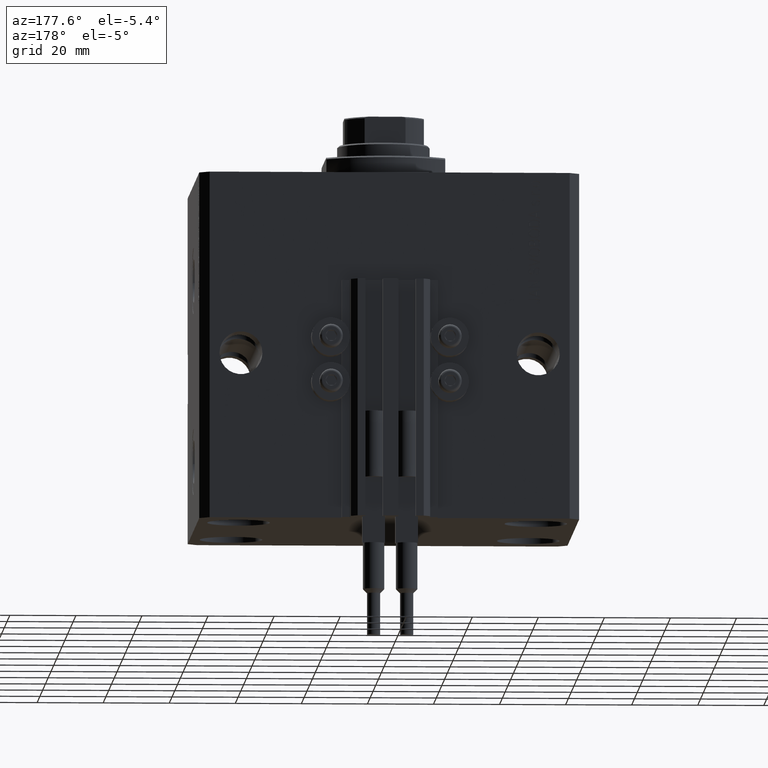
[diagram: clean part render]
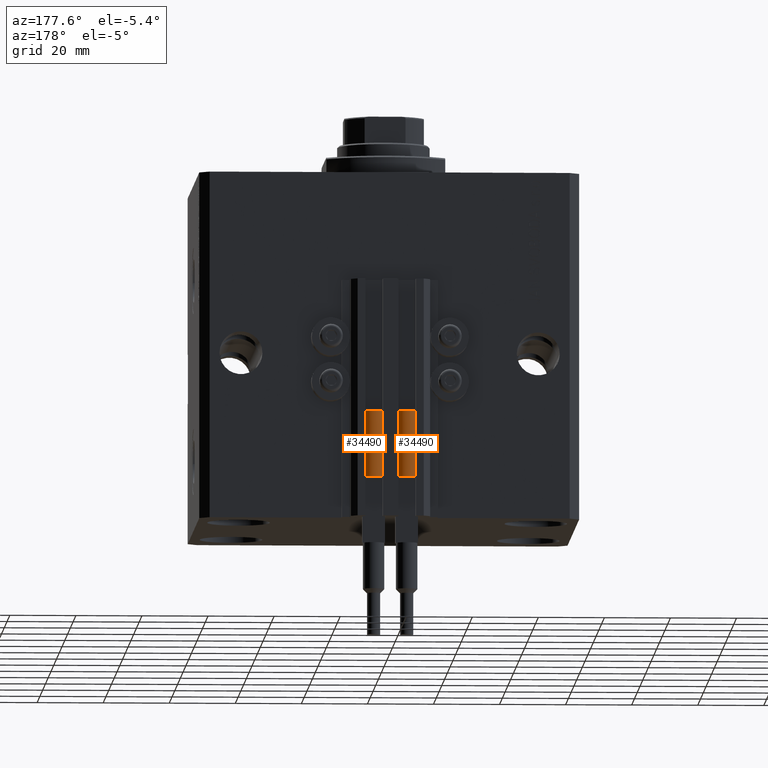
[diagram: same view with one multi-face feature highlighted, each face labeled with its STEP entity id]
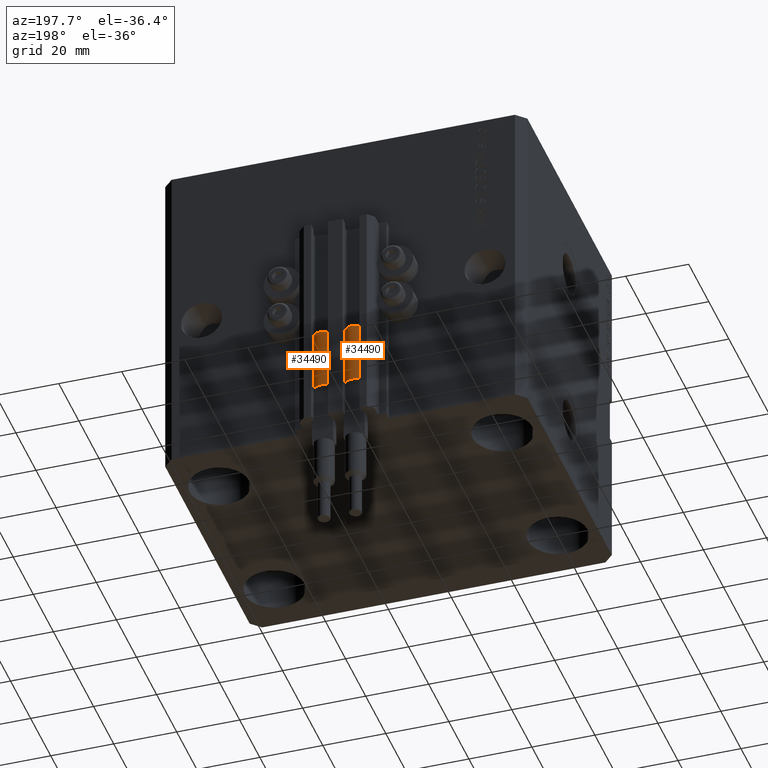
[diagram: same view with one multi-face feature highlighted, each face labeled with its STEP entity id]
A machine part, auxiliary view. The highlighted faces form ONE feature: a constant-radius fillet chain: 2 tangent blend faces with common blend radius 3.4 mm. The faces share edges in the B-rep.
A second angle (auxiliary view) of the same feature is appended — it is thin or edge-on in the first view.
Their STEP definitions:
[1] entity #34490 (Cylinder):
#7 = DIRECTION ( 'NONE',  ( -0.000000000000000000, -0.000000000000000000, -1.000000000000000000 ) ) ;
#2029 = AXIS2_PLACEMENT_3D ( 'NONE', #11213, #14496, #22337 ) ;
#3030 = CARTESIAN_POINT ( 'NONE',  ( -3.400000000000000355, 0.000000000000000000, 0.000000000000000000 ) ) ;
#3381 = ORIENTED_EDGE ( 'NONE', *, *, #9320, .T. ) ;
#3737 = EDGE_CURVE ( 'NONE', #19848, #6363, #36310, .T. ) ;
#4450 = CARTESIAN_POINT ( 'NONE',  ( -3.399999999999999467, -4.915049848600952119E-16, 20.00000000000000000 ) ) ;
#5267 = VECTOR ( 'NONE', #7, 1000.000000000000000 ) ;
#6185 = CYLINDRICAL_SURFACE ( 'NONE', #13505, 3.400000000000000355 ) ;
#6363 = VERTEX_POINT ( 'NONE', #40035 ) ;
#7798 = LINE ( 'NONE', #11834, #18356 ) ;
#8040 = DIRECTION ( 'NONE',  ( -0.000000000000000000, -0.000000000000000000, -1.000000000000000000 ) ) ;
#8580 = DIRECTION ( 'NONE',  ( 0.000000000000000000, 0.000000000000000000, 1.000000000000000000 ) ) ;
#9320 = EDGE_CURVE ( 'NONE', #15236, #12176, #37965, .T. ) ;
#11213 = CARTESIAN_POINT ( 'NONE',  ( 0.000000000000000000, 0.000000000000000000, 20.00000000000000000 ) ) ;
#11834 = CARTESIAN_POINT ( 'NONE',  ( 3.400000000000000355, 4.163799117101001052E-16, 20.00000000000000000 ) ) ;
#11993 = CARTESIAN_POINT ( 'NONE',  ( 3.400000000000000355, 0.000000000000000000, 20.00000000000000000 ) ) ;
#12176 = VERTEX_POINT ( 'NONE', #3030 ) ;
#12959 = DIRECTION ( 'NONE',  ( 0.000000000000000000, 0.000000000000000000, 1.000000000000000000 ) ) ;
#13505 = AXIS2_PLACEMENT_3D ( 'NONE', #25157, #40071, #44117 ) ;
#13652 = AXIS2_PLACEMENT_3D ( 'NONE', #28161, #12959, #35982 ) ;
#14496 = DIRECTION ( 'NONE',  ( 0.000000000000000000, 0.000000000000000000, 1.000000000000000000 ) ) ;
#15236 = VERTEX_POINT ( 'NONE', #28921 ) ;
#15704 = EDGE_CURVE ( 'NONE', #40681, #12176, #30607, .T. ) ;
#18356 = VECTOR ( 'NONE', #8040, 1000.000000000000000 ) ;
#19848 = VERTEX_POINT ( 'NONE', #11993 ) ;
#20474 = CARTESIAN_POINT ( 'NONE',  ( 0.000000000000000000, 0.000000000000000000, 0.000000000000000000 ) ) ;
#20609 = FACE_OUTER_BOUND ( 'NONE', #24343, .T. ) ;
#20648 = VERTEX_POINT ( 'NONE', #21188 ) ;
#21188 = CARTESIAN_POINT ( 'NONE',  ( -3.051229260478471428, 1.500000000000000000, 20.00000000000000000 ) ) ;
#22183 = CIRCLE ( 'NONE', #2029, 3.400000000000000355 ) ;
#22337 = DIRECTION ( 'NONE',  ( 1.000000000000000000, 0.000000000000000000, 0.000000000000000000 ) ) ;
#22541 = ORIENTED_EDGE ( 'NONE', *, *, #15704, .F. ) ;
#23149 = ORIENTED_EDGE ( 'NONE', *, *, #3737, .F. ) ;
#24181 = CIRCLE ( 'NONE', #13652, 3.400000000000000355 ) ;
#24343 = EDGE_LOOP ( 'NONE', ( #23149, #35509, #3381, #22541, #43373, #24659 ) ) ;
#24659 = ORIENTED_EDGE ( 'NONE', *, *, #41793, .F. ) ;
#25157 = CARTESIAN_POINT ( 'NONE',  ( 0.000000000000000000, 0.000000000000000000, 20.00000000000000000 ) ) ;
#26813 = CARTESIAN_POINT ( 'NONE',  ( -3.400000000000000355, 0.000000000000000000, 20.00000000000000000 ) ) ;
#28161 = CARTESIAN_POINT ( 'NONE',  ( 0.000000000000000000, 0.000000000000000000, 20.00000000000000000 ) ) ;
#28239 = DIRECTION ( 'NONE',  ( 1.000000000000000000, 0.000000000000000000, 0.000000000000000000 ) ) ;
#28481 = EDGE_CURVE ( 'NONE', #20648, #40681, #22183, .T. ) ;
#28921 = CARTESIAN_POINT ( 'NONE',  ( 3.400000000000000355, 4.163799117101001052E-16, 0.000000000000000000 ) ) ;
#28967 = DIRECTION ( 'NONE',  ( 0.000000000000000000, 0.000000000000000000, 1.000000000000000000 ) ) ;
#29067 = AXIS2_PLACEMENT_3D ( 'NONE', #39858, #28967, #28239 ) ;
#30607 = LINE ( 'NONE', #26813, #5267 ) ;
#31865 = DIRECTION ( 'NONE',  ( 1.000000000000000000, 0.000000000000000000, 0.000000000000000000 ) ) ;
#34490 = ADVANCED_FACE ( 'NONE', ( #20609 ), #6185, .T. ) ;
#35038 = EDGE_CURVE ( 'NONE', #19848, #15236, #7798, .T. ) ;
#35509 = ORIENTED_EDGE ( 'NONE', *, *, #35038, .T. ) ;
#35982 = DIRECTION ( 'NONE',  ( 1.000000000000000000, 0.000000000000000000, 0.000000000000000000 ) ) ;
#36310 = CIRCLE ( 'NONE', #29067, 3.400000000000000355 ) ;
#37965 = CIRCLE ( 'NONE', #42860, 3.400000000000000355 ) ;
#39858 = CARTESIAN_POINT ( 'NONE',  ( 0.000000000000000000, 0.000000000000000000, 20.00000000000000000 ) ) ;
#40035 = CARTESIAN_POINT ( 'NONE',  ( 3.051229260478471428, 1.500000000000000000, 20.00000000000000000 ) ) ;
#40071 = DIRECTION ( 'NONE',  ( -0.000000000000000000, -0.000000000000000000, -1.000000000000000000 ) ) ;
#40681 = VERTEX_POINT ( 'NONE', #4450 ) ;
#41793 = EDGE_CURVE ( 'NONE', #6363, #20648, #24181, .T. ) ;
#42860 = AXIS2_PLACEMENT_3D ( 'NONE', #20474, #8580, #31865 ) ;
#43373 = ORIENTED_EDGE ( 'NONE', *, *, #28481, .F. ) ;
#44117 = DIRECTION ( 'NONE',  ( -1.000000000000000000, 0.000000000000000000, 0.000000000000000000 ) ) ;
[2] entity #34490 (Cylinder):
#7 = DIRECTION ( 'NONE',  ( -0.000000000000000000, -0.000000000000000000, -1.000000000000000000 ) ) ;
#2029 = AXIS2_PLACEMENT_3D ( 'NONE', #11213, #14496, #22337 ) ;
#3030 = CARTESIAN_POINT ( 'NONE',  ( -3.400000000000000355, 0.000000000000000000, 0.000000000000000000 ) ) ;
#3381 = ORIENTED_EDGE ( 'NONE', *, *, #9320, .T. ) ;
#3737 = EDGE_CURVE ( 'NONE', #19848, #6363, #36310, .T. ) ;
#4450 = CARTESIAN_POINT ( 'NONE',  ( -3.399999999999999467, -4.915049848600952119E-16, 20.00000000000000000 ) ) ;
#5267 = VECTOR ( 'NONE', #7, 1000.000000000000000 ) ;
#6185 = CYLINDRICAL_SURFACE ( 'NONE', #13505, 3.400000000000000355 ) ;
#6363 = VERTEX_POINT ( 'NONE', #40035 ) ;
#7798 = LINE ( 'NONE', #11834, #18356 ) ;
#8040 = DIRECTION ( 'NONE',  ( -0.000000000000000000, -0.000000000000000000, -1.000000000000000000 ) ) ;
#8580 = DIRECTION ( 'NONE',  ( 0.000000000000000000, 0.000000000000000000, 1.000000000000000000 ) ) ;
#9320 = EDGE_CURVE ( 'NONE', #15236, #12176, #37965, .T. ) ;
#11213 = CARTESIAN_POINT ( 'NONE',  ( 0.000000000000000000, 0.000000000000000000, 20.00000000000000000 ) ) ;
#11834 = CARTESIAN_POINT ( 'NONE',  ( 3.400000000000000355, 4.163799117101001052E-16, 20.00000000000000000 ) ) ;
#11993 = CARTESIAN_POINT ( 'NONE',  ( 3.400000000000000355, 0.000000000000000000, 20.00000000000000000 ) ) ;
#12176 = VERTEX_POINT ( 'NONE', #3030 ) ;
#12959 = DIRECTION ( 'NONE',  ( 0.000000000000000000, 0.000000000000000000, 1.000000000000000000 ) ) ;
#13505 = AXIS2_PLACEMENT_3D ( 'NONE', #25157, #40071, #44117 ) ;
#13652 = AXIS2_PLACEMENT_3D ( 'NONE', #28161, #12959, #35982 ) ;
#14496 = DIRECTION ( 'NONE',  ( 0.000000000000000000, 0.000000000000000000, 1.000000000000000000 ) ) ;
#15236 = VERTEX_POINT ( 'NONE', #28921 ) ;
#15704 = EDGE_CURVE ( 'NONE', #40681, #12176, #30607, .T. ) ;
#18356 = VECTOR ( 'NONE', #8040, 1000.000000000000000 ) ;
#19848 = VERTEX_POINT ( 'NONE', #11993 ) ;
#20474 = CARTESIAN_POINT ( 'NONE',  ( 0.000000000000000000, 0.000000000000000000, 0.000000000000000000 ) ) ;
#20609 = FACE_OUTER_BOUND ( 'NONE', #24343, .T. ) ;
#20648 = VERTEX_POINT ( 'NONE', #21188 ) ;
#21188 = CARTESIAN_POINT ( 'NONE',  ( -3.051229260478471428, 1.500000000000000000, 20.00000000000000000 ) ) ;
#22183 = CIRCLE ( 'NONE', #2029, 3.400000000000000355 ) ;
#22337 = DIRECTION ( 'NONE',  ( 1.000000000000000000, 0.000000000000000000, 0.000000000000000000 ) ) ;
#22541 = ORIENTED_EDGE ( 'NONE', *, *, #15704, .F. ) ;
#23149 = ORIENTED_EDGE ( 'NONE', *, *, #3737, .F. ) ;
#24181 = CIRCLE ( 'NONE', #13652, 3.400000000000000355 ) ;
#24343 = EDGE_LOOP ( 'NONE', ( #23149, #35509, #3381, #22541, #43373, #24659 ) ) ;
#24659 = ORIENTED_EDGE ( 'NONE', *, *, #41793, .F. ) ;
#25157 = CARTESIAN_POINT ( 'NONE',  ( 0.000000000000000000, 0.000000000000000000, 20.00000000000000000 ) ) ;
#26813 = CARTESIAN_POINT ( 'NONE',  ( -3.400000000000000355, 0.000000000000000000, 20.00000000000000000 ) ) ;
#28161 = CARTESIAN_POINT ( 'NONE',  ( 0.000000000000000000, 0.000000000000000000, 20.00000000000000000 ) ) ;
#28239 = DIRECTION ( 'NONE',  ( 1.000000000000000000, 0.000000000000000000, 0.000000000000000000 ) ) ;
#28481 = EDGE_CURVE ( 'NONE', #20648, #40681, #22183, .T. ) ;
#28921 = CARTESIAN_POINT ( 'NONE',  ( 3.400000000000000355, 4.163799117101001052E-16, 0.000000000000000000 ) ) ;
#28967 = DIRECTION ( 'NONE',  ( 0.000000000000000000, 0.000000000000000000, 1.000000000000000000 ) ) ;
#29067 = AXIS2_PLACEMENT_3D ( 'NONE', #39858, #28967, #28239 ) ;
#30607 = LINE ( 'NONE', #26813, #5267 ) ;
#31865 = DIRECTION ( 'NONE',  ( 1.000000000000000000, 0.000000000000000000, 0.000000000000000000 ) ) ;
#34490 = ADVANCED_FACE ( 'NONE', ( #20609 ), #6185, .T. ) ;
#35038 = EDGE_CURVE ( 'NONE', #19848, #15236, #7798, .T. ) ;
#35509 = ORIENTED_EDGE ( 'NONE', *, *, #35038, .T. ) ;
#35982 = DIRECTION ( 'NONE',  ( 1.000000000000000000, 0.000000000000000000, 0.000000000000000000 ) ) ;
#36310 = CIRCLE ( 'NONE', #29067, 3.400000000000000355 ) ;
#37965 = CIRCLE ( 'NONE', #42860, 3.400000000000000355 ) ;
#39858 = CARTESIAN_POINT ( 'NONE',  ( 0.000000000000000000, 0.000000000000000000, 20.00000000000000000 ) ) ;
#40035 = CARTESIAN_POINT ( 'NONE',  ( 3.051229260478471428, 1.500000000000000000, 20.00000000000000000 ) ) ;
#40071 = DIRECTION ( 'NONE',  ( -0.000000000000000000, -0.000000000000000000, -1.000000000000000000 ) ) ;
#40681 = VERTEX_POINT ( 'NONE', #4450 ) ;
#41793 = EDGE_CURVE ( 'NONE', #6363, #20648, #24181, .T. ) ;
#42860 = AXIS2_PLACEMENT_3D ( 'NONE', #20474, #8580, #31865 ) ;
#43373 = ORIENTED_EDGE ( 'NONE', *, *, #28481, .F. ) ;
#44117 = DIRECTION ( 'NONE',  ( -1.000000000000000000, 0.000000000000000000, 0.000000000000000000 ) ) ;